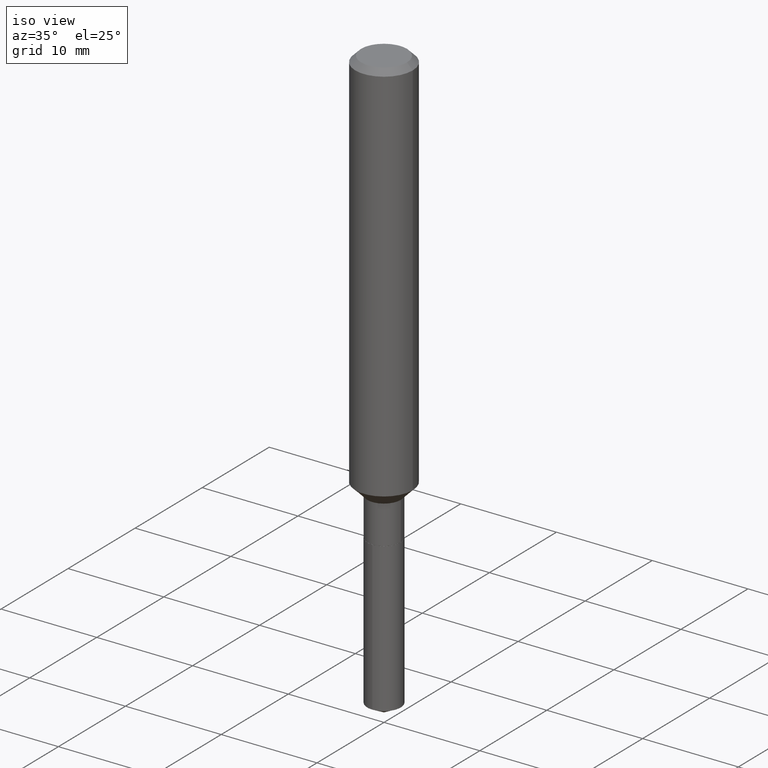
[diagram: clean part render]
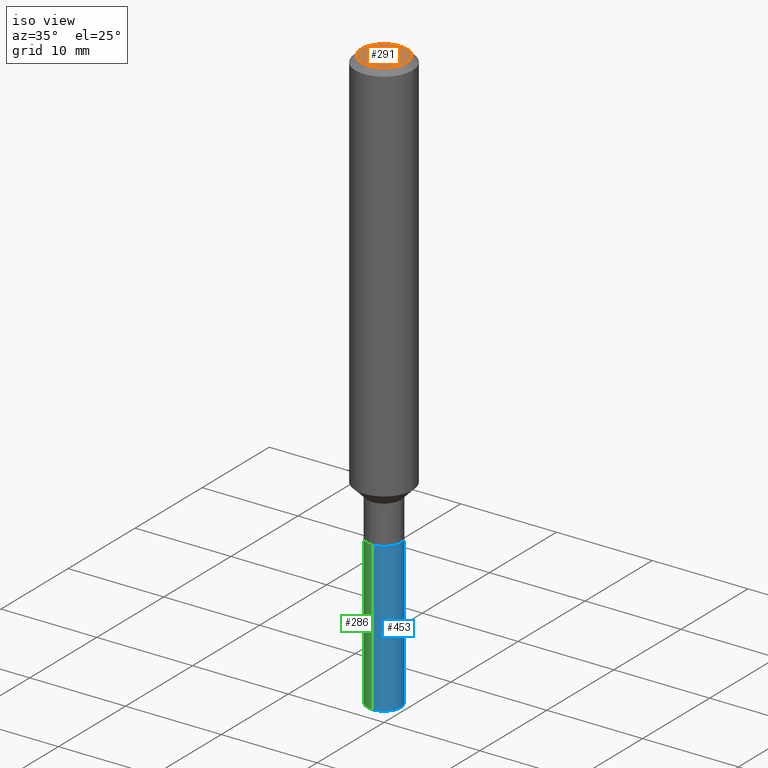
[diagram: same view with three faces highlighted in distinct colors, each labeled with its STEP entity id]
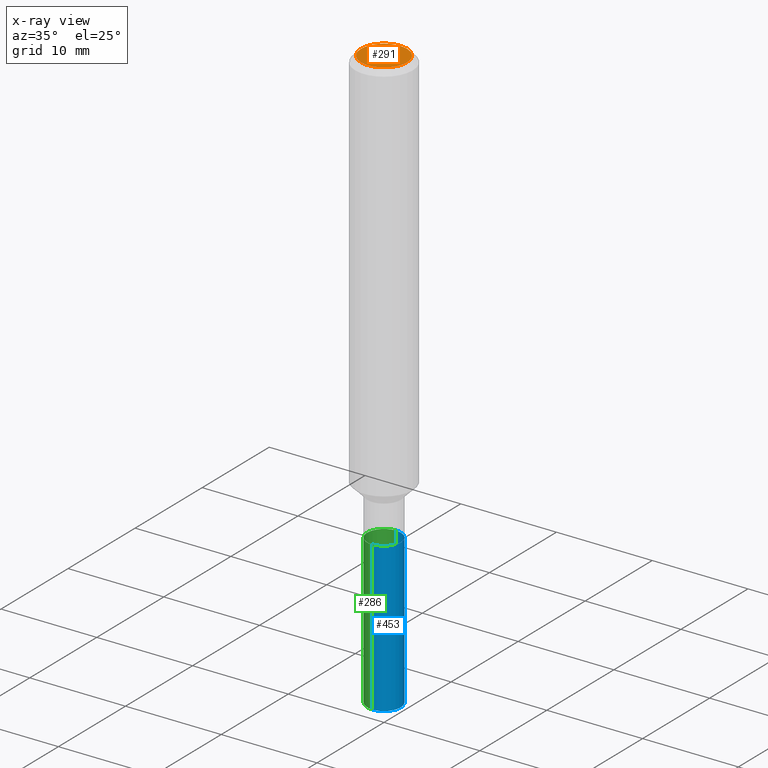
[diagram: x-ray of the same camera — body ghosted, the three highlighted faces saturated]
A machine part, iso view with three faces highlighted in distinct colors.
The next image is the same camera in x-ray (body ghosted, the three faces saturated) — at least one of them is partly hidden behind the body in this view.
Their STEP definitions:

[orange] entity #291 — the highlighted planar face has unit normal (0, -0, -1).
#13 = AXIS2_PLACEMENT_3D ( 'NONE', #367, #67, #423 ) ;
#67 = DIRECTION ( 'NONE',  ( -2.445468806185136597E-29, 3.491481338843145583E-15, 1.000000000000000000 ) ) ;
#80 = CARTESIAN_POINT ( 'NONE',  ( 2.358133508849003952E-46, -3.366789680499277518E-32, -9.642868896486260050E-18 ) ) ;
#83 = CARTESIAN_POINT ( 'NONE',  ( 4.716267017698007905E-46, -6.733579360998555036E-32, -1.928573779297252010E-17 ) ) ;
#93 = ORIENTED_EDGE ( 'NONE', *, *, #276, .T. ) ;
#108 = CIRCLE ( 'NONE', #13, 0.09447999999999998066 ) ;
#109 = DIRECTION ( 'NONE',  ( -1.000000000000000000, 6.982962677686265922E-15, -4.876176775795935793E-29 ) ) ;
#125 = FACE_OUTER_BOUND ( 'NONE', #399, .T. ) ;
#148 = DIRECTION ( 'NONE',  ( 1.000000000000000000, -6.982962677686267499E-15, 4.875432709231658792E-29 ) ) ;
#163 = DIRECTION ( 'NONE',  ( 2.438088387897960049E-29, -3.491481338843145188E-15, -1.000000000000000000 ) ) ;
#207 = CIRCLE ( 'NONE', #289, 0.09447999999999998066 ) ;
#220 = EDGE_CURVE ( 'NONE', #462, #347, #108, .T. ) ;
#255 = AXIS2_PLACEMENT_3D ( 'NONE', #80, #163, #109 ) ;
#276 = EDGE_CURVE ( 'NONE', #347, #462, #207, .T. ) ;
#285 = ORIENTED_EDGE ( 'NONE', *, *, #220, .T. ) ;
#289 = AXIS2_PLACEMENT_3D ( 'NONE', #83, #419, #148 ) ;
#291 = ADVANCED_FACE ( 'NONE', ( #125 ), #449, .F. ) ;
#347 = VERTEX_POINT ( 'NONE', #479 ) ;
#367 = CARTESIAN_POINT ( 'NONE',  ( 4.716267017698007905E-46, -6.733579360998555036E-32, -1.928573779297252010E-17 ) ) ;
#384 = CARTESIAN_POINT ( 'NONE',  ( 0.09447999999999998066, -7.704367267948738690E-16, -1.928573779296752193E-17 ) ) ;
#399 = EDGE_LOOP ( 'NONE', ( #93, #285 ) ) ;
#419 = DIRECTION ( 'NONE',  ( -2.445468806185136597E-29, 3.491481338843145583E-15, 1.000000000000000000 ) ) ;
#423 = DIRECTION ( 'NONE',  ( 1.000000000000000000, -6.982962677686267499E-15, 4.875432709231658792E-29 ) ) ;
#449 = PLANE ( 'NONE',  #255 ) ;
#462 = VERTEX_POINT ( 'NONE', #384 ) ;
#479 = CARTESIAN_POINT ( 'NONE',  ( -0.09447999999999998066, 7.009847083995354710E-16, -1.928573779297727792E-17 ) ) ;

[blue] entity #453 — the highlighted cylindrical surface (edge-blend (fillet) strip) has radius 1.7501 mm, axis along (-0, 0, 1).
#4 = DIRECTION ( 'NONE',  ( -2.434688029018360696E-29, 3.506920025349698680E-15, 1.000000000000000000 ) ) ;
#5 = VERTEX_POINT ( 'NONE', #451 ) ;
#10 = VECTOR ( 'NONE', #38, 39.37007874015748143 ) ;
#15 = EDGE_CURVE ( 'NONE', #370, #5, #456, .T. ) ;
#38 = DIRECTION ( 'NONE',  ( -2.434688029018360696E-29, 3.506920025349698286E-15, 1.000000000000000000 ) ) ;
#41 = EDGE_CURVE ( 'NONE', #114, #381, #78, .T. ) ;
#78 = LINE ( 'NONE', #379, #143 ) ;
#84 = AXIS2_PLACEMENT_3D ( 'NONE', #350, #356, #325 ) ;
#102 = FACE_OUTER_BOUND ( 'NONE', #319, .T. ) ;
#114 = VERTEX_POINT ( 'NONE', #167 ) ;
#141 = CARTESIAN_POINT ( 'NONE',  ( 4.380568272519433819E-29, -6.254290522269724810E-15, -1.791299999999999448 ) ) ;
#143 = VECTOR ( 'NONE', #262, 39.37007874015748143 ) ;
#167 = CARTESIAN_POINT ( 'NONE',  ( -4.811261284925249684E-16, -0.06890000000000841285, -2.404265220158523508 ) ) ;
#175 = ORIENTED_EDGE ( 'NONE', *, *, #41, .F. ) ;
#198 = ORIENTED_EDGE ( 'NONE', *, *, #15, .T. ) ;
#201 = EDGE_CURVE ( 'NONE', #381, #5, #478, .T. ) ;
#202 = CARTESIAN_POINT ( 'NONE',  ( 4.895639449387678189E-16, 0.06889999999999160685, -2.404265220158523952 ) ) ;
#206 = DIRECTION ( 'NONE',  ( -2.434688029018360696E-29, 3.506920025349698680E-15, 1.000000000000000000 ) ) ;
#249 = DIRECTION ( 'NONE',  ( -6.982962677686265922E-15, -1.000000000000000000, 3.964946289788480107E-15 ) ) ;
#262 = DIRECTION ( 'NONE',  ( -2.434688029018360696E-29, 3.506920025349698286E-15, 1.000000000000000000 ) ) ;
#265 = ORIENTED_EDGE ( 'NONE', *, *, #391, .T. ) ;
#287 = CARTESIAN_POINT ( 'NONE',  ( -4.811261284925399567E-16, -0.06890000000000626179, -1.791299999999999226 ) ) ;
#294 = CIRCLE ( 'NONE', #84, 0.06890000000000001679 ) ;
#305 = AXIS2_PLACEMENT_3D ( 'NONE', #141, #206, #249 ) ;
#319 = EDGE_LOOP ( 'NONE', ( #265, #198, #485, #175 ) ) ;
#325 = DIRECTION ( 'NONE',  ( -6.982962677686265922E-15, -1.000000000000000000, 3.964946289788480107E-15 ) ) ;
#342 = CARTESIAN_POINT ( 'NONE',  ( 4.380568272519433819E-29, -6.254290522269724810E-15, -1.791299999999999448 ) ) ;
#350 = CARTESIAN_POINT ( 'NONE',  ( 5.872947356243995512E-29, -8.403910527686539595E-15, -2.404265220158523508 ) ) ;
#356 = DIRECTION ( 'NONE',  ( -2.434688029018360696E-29, 3.506920025349698680E-15, 1.000000000000000000 ) ) ;
#370 = VERTEX_POINT ( 'NONE', #202 ) ;
#379 = CARTESIAN_POINT ( 'NONE',  ( -4.811261284925400553E-16, -0.06890000000000627567, -1.791299999999999226 ) ) ;
#381 = VERTEX_POINT ( 'NONE', #287 ) ;
#388 = CYLINDRICAL_SURFACE ( 'NONE', #305, 0.06890000000000001679 ) ;
#391 = EDGE_CURVE ( 'NONE', #114, #370, #294, .T. ) ;
#414 = AXIS2_PLACEMENT_3D ( 'NONE', #342, #4, #467 ) ;
#418 = CARTESIAN_POINT ( 'NONE',  ( 4.895639449387528305E-16, 0.06889999999999375790, -1.791299999999999892 ) ) ;
#451 = CARTESIAN_POINT ( 'NONE',  ( 4.895639449387679175E-16, 0.06889999999999374403, -1.791299999999999892 ) ) ;
#453 = ADVANCED_FACE ( 'NONE', ( #102 ), #388, .T. ) ;
#456 = LINE ( 'NONE', #418, #10 ) ;
#467 = DIRECTION ( 'NONE',  ( -6.982962677686265922E-15, -1.000000000000000000, 3.964946289788480896E-15 ) ) ;
#478 = CIRCLE ( 'NONE', #414, 0.06890000000000000291 ) ;
#485 = ORIENTED_EDGE ( 'NONE', *, *, #201, .F. ) ;

[green] entity #286 — the highlighted cylindrical surface (edge-blend (fillet) strip) has radius 1.7501 mm, axis along (-0, 0, 1).
#5 = VERTEX_POINT ( 'NONE', #451 ) ;
#7 = DIRECTION ( 'NONE',  ( -6.982962677686265922E-15, -1.000000000000000000, 3.964946289788480896E-15 ) ) ;
#10 = VECTOR ( 'NONE', #38, 39.37007874015748143 ) ;
#11 = CYLINDRICAL_SURFACE ( 'NONE', #366, 0.06890000000000001679 ) ;
#15 = EDGE_CURVE ( 'NONE', #370, #5, #456, .T. ) ;
#19 = ORIENTED_EDGE ( 'NONE', *, *, #153, .F. ) ;
#25 = CARTESIAN_POINT ( 'NONE',  ( 5.872947356243995512E-29, -8.403910527686539595E-15, -2.404265220158523508 ) ) ;
#38 = DIRECTION ( 'NONE',  ( -2.434688029018360696E-29, 3.506920025349698286E-15, 1.000000000000000000 ) ) ;
#41 = EDGE_CURVE ( 'NONE', #114, #381, #78, .T. ) ;
#42 = AXIS2_PLACEMENT_3D ( 'NONE', #310, #315, #7 ) ;
#59 = DIRECTION ( 'NONE',  ( -6.982962677686265922E-15, -1.000000000000000000, 3.964946289788480107E-15 ) ) ;
#78 = LINE ( 'NONE', #379, #143 ) ;
#82 = EDGE_LOOP ( 'NONE', ( #169, #89, #127, #19 ) ) ;
#89 = ORIENTED_EDGE ( 'NONE', *, *, #444, .T. ) ;
#114 = VERTEX_POINT ( 'NONE', #167 ) ;
#127 = ORIENTED_EDGE ( 'NONE', *, *, #41, .T. ) ;
#143 = VECTOR ( 'NONE', #262, 39.37007874015748143 ) ;
#153 = EDGE_CURVE ( 'NONE', #5, #381, #177, .T. ) ;
#159 = DIRECTION ( 'NONE',  ( -2.434688029018360696E-29, 3.506920025349698680E-15, 1.000000000000000000 ) ) ;
#167 = CARTESIAN_POINT ( 'NONE',  ( -4.811261284925249684E-16, -0.06890000000000841285, -2.404265220158523508 ) ) ;
#169 = ORIENTED_EDGE ( 'NONE', *, *, #15, .F. ) ;
#177 = CIRCLE ( 'NONE', #42, 0.06890000000000000291 ) ;
#202 = CARTESIAN_POINT ( 'NONE',  ( 4.895639449387678189E-16, 0.06889999999999160685, -2.404265220158523952 ) ) ;
#209 = CIRCLE ( 'NONE', #426, 0.06890000000000001679 ) ;
#227 = CARTESIAN_POINT ( 'NONE',  ( 4.380568272519433819E-29, -6.254290522269724810E-15, -1.791299999999999448 ) ) ;
#244 = DIRECTION ( 'NONE',  ( -2.434688029018360696E-29, 3.506920025349698680E-15, 1.000000000000000000 ) ) ;
#257 = DIRECTION ( 'NONE',  ( -6.982962677686265922E-15, -1.000000000000000000, 3.964946289788480107E-15 ) ) ;
#262 = DIRECTION ( 'NONE',  ( -2.434688029018360696E-29, 3.506920025349698286E-15, 1.000000000000000000 ) ) ;
#286 = ADVANCED_FACE ( 'NONE', ( #346 ), #11, .T. ) ;
#287 = CARTESIAN_POINT ( 'NONE',  ( -4.811261284925399567E-16, -0.06890000000000626179, -1.791299999999999226 ) ) ;
#310 = CARTESIAN_POINT ( 'NONE',  ( 4.380568272519433819E-29, -6.254290522269724810E-15, -1.791299999999999448 ) ) ;
#315 = DIRECTION ( 'NONE',  ( -2.434688029018360696E-29, 3.506920025349698680E-15, 1.000000000000000000 ) ) ;
#346 = FACE_OUTER_BOUND ( 'NONE', #82, .T. ) ;
#366 = AXIS2_PLACEMENT_3D ( 'NONE', #227, #159, #257 ) ;
#370 = VERTEX_POINT ( 'NONE', #202 ) ;
#379 = CARTESIAN_POINT ( 'NONE',  ( -4.811261284925400553E-16, -0.06890000000000627567, -1.791299999999999226 ) ) ;
#381 = VERTEX_POINT ( 'NONE', #287 ) ;
#418 = CARTESIAN_POINT ( 'NONE',  ( 4.895639449387528305E-16, 0.06889999999999375790, -1.791299999999999892 ) ) ;
#426 = AXIS2_PLACEMENT_3D ( 'NONE', #25, #244, #59 ) ;
#444 = EDGE_CURVE ( 'NONE', #370, #114, #209, .T. ) ;
#451 = CARTESIAN_POINT ( 'NONE',  ( 4.895639449387679175E-16, 0.06889999999999374403, -1.791299999999999892 ) ) ;
#456 = LINE ( 'NONE', #418, #10 ) ;